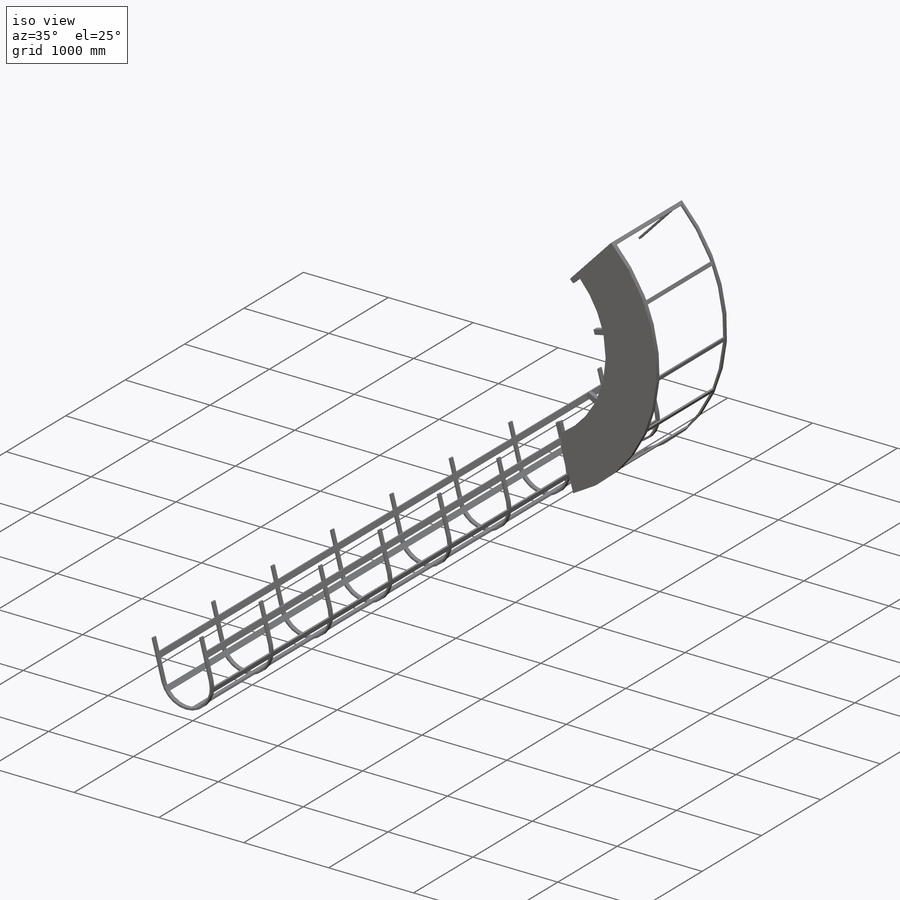
[diagram: iso view]
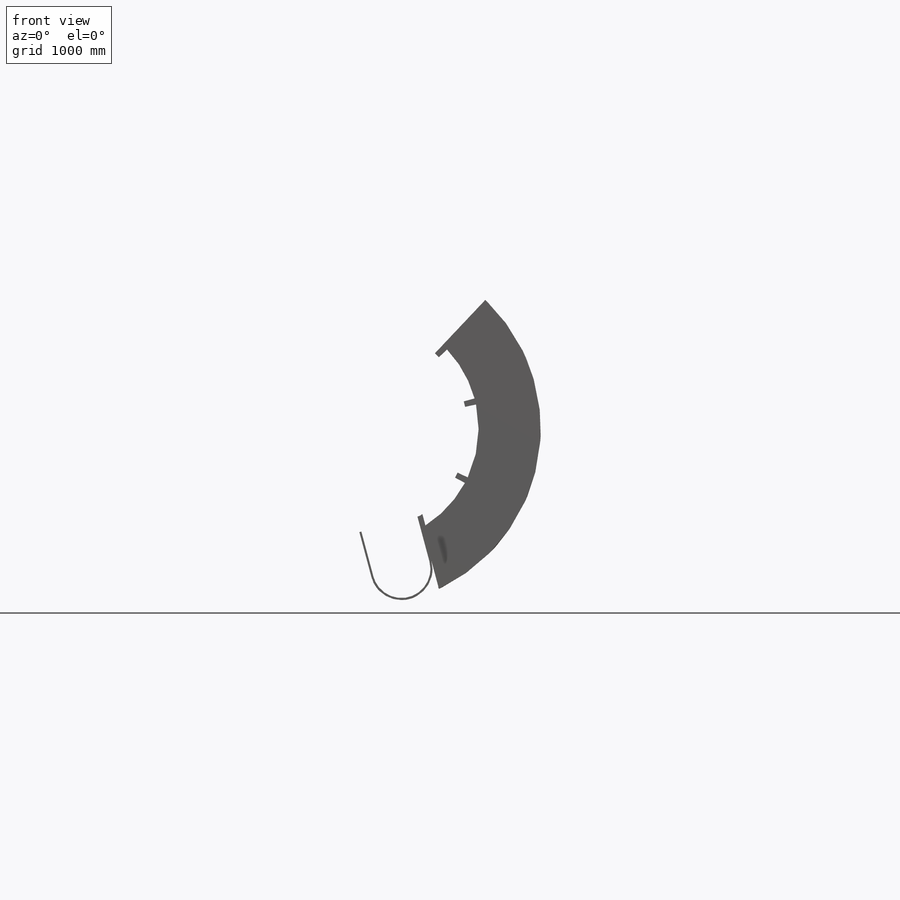
[diagram: front view]
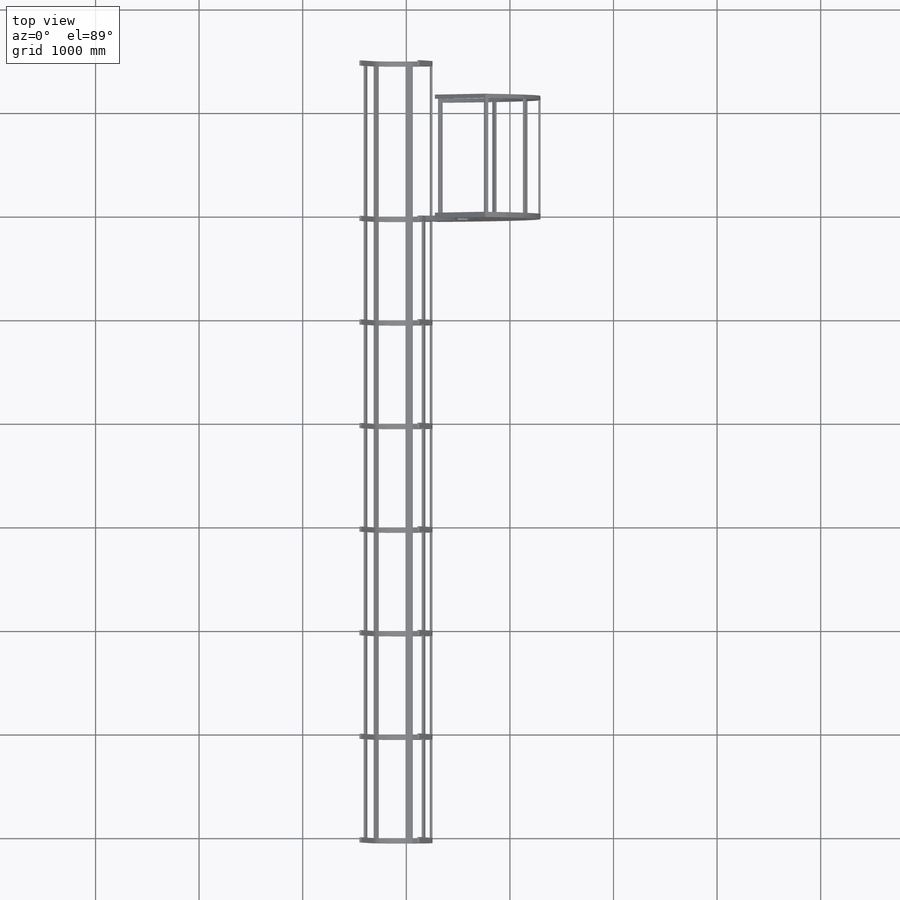
[diagram: top view]
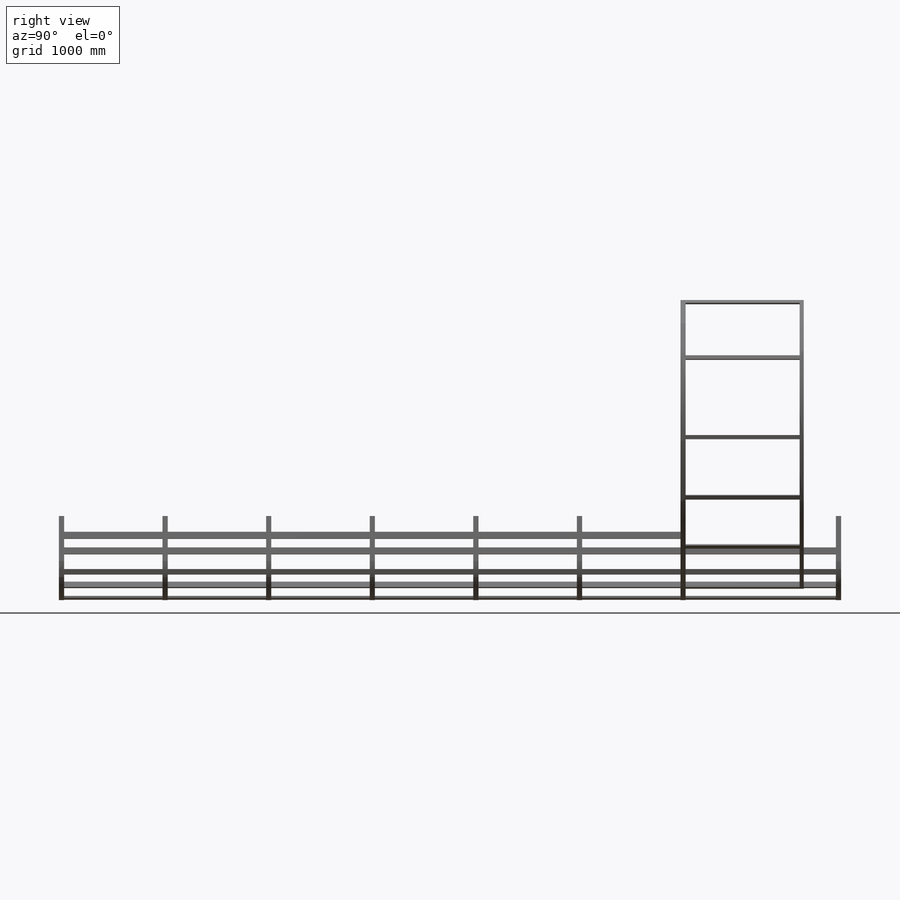
[diagram: right view]
SOLIDWORKS PART (.sldprt)
format: sldprt  version: not decoded by parser v0  size: 1,142,784 bytes
history: native  units: mm
features: sketch x7, extrude x5, pattern_linear x2, cut_extrude x2, material x1, plane x1 (+16 scaffold rows collapsed)
feature tree (34):
  scaffold x16  (default folders/planes/origin — collapsed)
  material  "Material <not specified>"
  sketch  "Sketch1"  dims[c1.D3=~1189.968983mm c1.D1=~1089.451397mm c2.D1=300.0deg c2.D2=~1089.451397mm c3.D2=195.0deg c3.D3=~1862.539145mm c4.D3=~5.318413deg c4.D2=~1089.451397mm c5.D2=195.0deg c5.D3=600.0mm c5.D4=300.0mm c5.D5=60.0mm c5.D6=600.0mm c5.D7=60.0mm c5.D8=560.0mm c5.D9=60.0mm]
  extrude  "Extrude1"  Depth=50mm
  sketch  "Sketch2"  dims[D1=600.0mm D2=20.0mm]
  extrude  "Extrude2"  Depth=50mm
  sketch  "Sketch3"
  extrude  "Extrude3"  Depth=9000mm
  pattern_linear  "LPattern3"  Count1=10 Count2=1 Spacing1=1000mm Spacing2=10mm
  pattern_linear  "LPattern4"  Count1=2 Count2=1 Spacing1=1500mm Spacing2=10mm
  sketch  "Sketch4"  dims[D1=0.0mm]
  cut_extrude  "Extrude4"  [1 undecoded]
  sketch  "Sketch7"  dims[D1=20.0mm D2=40.0mm D3=40.0mm D4=20.0mm D5=40.0mm D6=20.0mm D7=40.0mm D8=20.0mm D9=40.0mm D10=20.0mm D11=20.0mm D12=40.0mm]
  extrude  "Extrude6"  Depth=1100mm
  plane  "Plane1"
  sketch  "Sketch10"  dims[D1=20.0mm]
  extrude  "Extrude7"  Depth=40mm
  sketch  "Sketch11"  dims[D1=0.0mm]
  cut_extrude  "Extrude8"  [1 undecoded]
decode coverage: 13 of 16 modeling features carry decoded parameters
note: ~ marks probable driven/reference dimensions
note: 2 parameter values undecoded
note: suppression state not decoded; provenance and decode notes live in map.json
